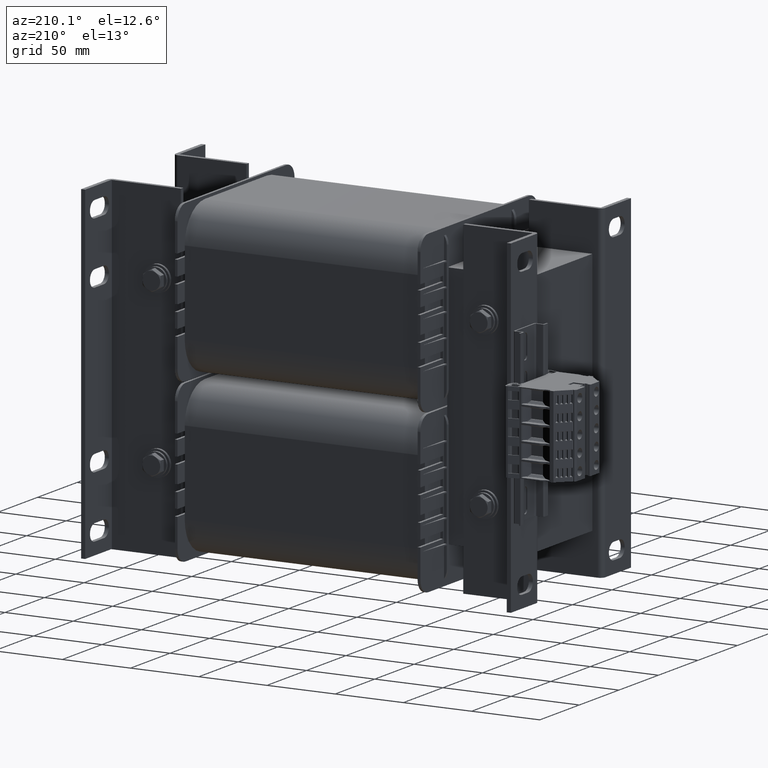
[diagram: clean part render]
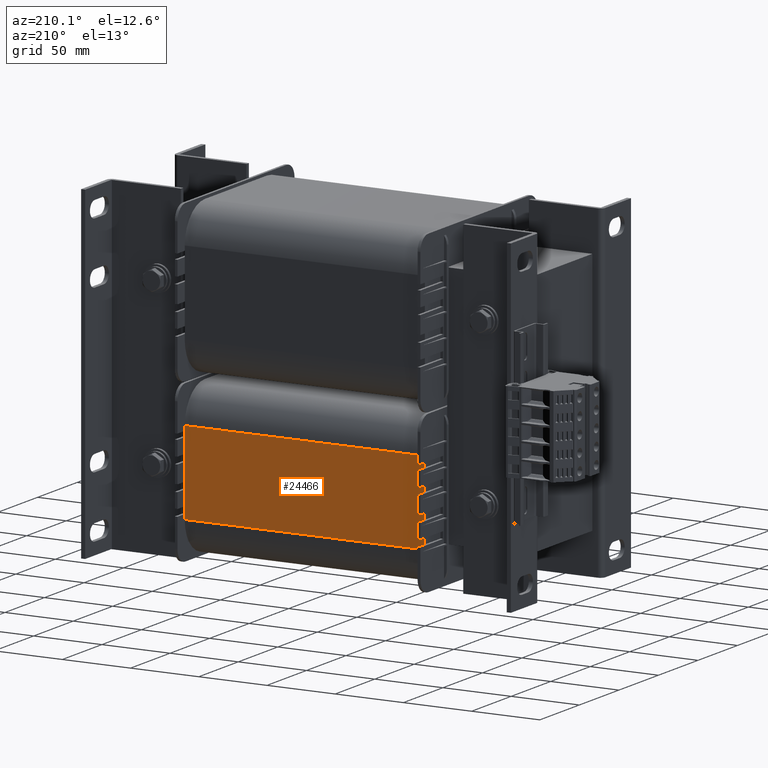
[diagram: same view with one face highlighted and labeled with its STEP entity id]
A machine part, auxiliary view. The second image highlights one B-rep face of the part: STEP entity #24466.
In plain terms, the highlighted planar face has unit normal (0, 1, 0).
Its self-contained STEP definition (entity closure, byte-faithful):
#2512=FACE_OUTER_BOUND('',#3906,.T.);
#3906=EDGE_LOOP('',(#16910,#16911,#16912,#16913,#16914,#16915,#16916,#16917,
#16918,#16919,#16920,#16921,#16922,#16923,#16924,#16925,#16926,#16927,#16928,
#16929));
#5350=LINE('',#36024,#7947);
#5352=LINE('',#36030,#7949);
#5356=LINE('',#36039,#7953);
#5360=LINE('',#36048,#7957);
#5384=LINE('',#36102,#7981);
#5388=LINE('',#36111,#7985);
#5392=LINE('',#36120,#7989);
#5396=LINE('',#36129,#7993);
#5419=LINE('',#36175,#8016);
#5420=LINE('',#36179,#8017);
#5421=LINE('',#36181,#8018);
#5422=LINE('',#36182,#8019);
#5423=LINE('',#36183,#8020);
#5424=LINE('',#36184,#8021);
#5425=LINE('',#36185,#8022);
#5426=LINE('',#36186,#8023);
#5427=LINE('',#36187,#8024);
#5428=LINE('',#36188,#8025);
#5429=LINE('',#36189,#8026);
#5430=LINE('',#36190,#8027);
#7947=VECTOR('',#28844,10.);
#7949=VECTOR('',#28848,10.);
#7953=VECTOR('',#28854,10.);
#7957=VECTOR('',#28860,10.);
#7981=VECTOR('',#28896,10.);
#7985=VECTOR('',#28902,10.);
#7989=VECTOR('',#28908,10.);
#7993=VECTOR('',#28914,10.);
#8016=VECTOR('',#28953,10.);
#8017=VECTOR('',#28958,10.);
#8018=VECTOR('',#28959,10.);
#8019=VECTOR('',#28960,10.);
#8020=VECTOR('',#28961,10.);
#8021=VECTOR('',#28962,10.);
#8022=VECTOR('',#28963,10.);
#8023=VECTOR('',#28964,10.);
#8024=VECTOR('',#28965,10.);
#8025=VECTOR('',#28966,10.);
#8026=VECTOR('',#28967,10.);
#8027=VECTOR('',#28968,10.);
#10548=VERTEX_POINT('',#36018);
#10550=VERTEX_POINT('',#36022);
#10551=VERTEX_POINT('',#36026);
#10553=VERTEX_POINT('',#36029);
#10555=VERTEX_POINT('',#36035);
#10557=VERTEX_POINT('',#36038);
#10559=VERTEX_POINT('',#36044);
#10561=VERTEX_POINT('',#36047);
#10584=VERTEX_POINT('',#36099);
#10585=VERTEX_POINT('',#36101);
#10588=VERTEX_POINT('',#36108);
#10589=VERTEX_POINT('',#36110);
#10592=VERTEX_POINT('',#36117);
#10593=VERTEX_POINT('',#36119);
#10596=VERTEX_POINT('',#36126);
#10597=VERTEX_POINT('',#36128);
#10611=VERTEX_POINT('',#36172);
#10612=VERTEX_POINT('',#36174);
#10613=VERTEX_POINT('',#36178);
#10614=VERTEX_POINT('',#36180);
#12955=EDGE_CURVE('',#10550,#10548,#5350,.T.);
#12957=EDGE_CURVE('',#10551,#10553,#5352,.T.);
#12961=EDGE_CURVE('',#10555,#10557,#5356,.T.);
#12965=EDGE_CURVE('',#10559,#10561,#5360,.T.);
#12989=EDGE_CURVE('',#10585,#10584,#5384,.T.);
#12993=EDGE_CURVE('',#10589,#10588,#5388,.T.);
#12997=EDGE_CURVE('',#10593,#10592,#5392,.T.);
#13001=EDGE_CURVE('',#10597,#10596,#5396,.T.);
#13027=EDGE_CURVE('',#10612,#10611,#5419,.T.);
#13029=EDGE_CURVE('',#10613,#10559,#5420,.T.);
#13030=EDGE_CURVE('',#10614,#10613,#5421,.T.);
#13031=EDGE_CURVE('',#10585,#10614,#5422,.T.);
#13032=EDGE_CURVE('',#10589,#10584,#5423,.T.);
#13033=EDGE_CURVE('',#10593,#10588,#5424,.T.);
#13034=EDGE_CURVE('',#10597,#10592,#5425,.T.);
#13035=EDGE_CURVE('',#10612,#10596,#5426,.T.);
#13036=EDGE_CURVE('',#10548,#10611,#5427,.T.);
#13037=EDGE_CURVE('',#10553,#10550,#5428,.T.);
#13038=EDGE_CURVE('',#10557,#10551,#5429,.T.);
#13039=EDGE_CURVE('',#10561,#10555,#5430,.T.);
#16910=ORIENTED_EDGE('',*,*,#13029,.F.);
#16911=ORIENTED_EDGE('',*,*,#13030,.F.);
#16912=ORIENTED_EDGE('',*,*,#13031,.F.);
#16913=ORIENTED_EDGE('',*,*,#12989,.T.);
#16914=ORIENTED_EDGE('',*,*,#13032,.F.);
#16915=ORIENTED_EDGE('',*,*,#12993,.T.);
#16916=ORIENTED_EDGE('',*,*,#13033,.F.);
#16917=ORIENTED_EDGE('',*,*,#12997,.T.);
#16918=ORIENTED_EDGE('',*,*,#13034,.F.);
#16919=ORIENTED_EDGE('',*,*,#13001,.T.);
#16920=ORIENTED_EDGE('',*,*,#13035,.F.);
#16921=ORIENTED_EDGE('',*,*,#13027,.T.);
#16922=ORIENTED_EDGE('',*,*,#13036,.F.);
#16923=ORIENTED_EDGE('',*,*,#12955,.F.);
#16924=ORIENTED_EDGE('',*,*,#13037,.F.);
#16925=ORIENTED_EDGE('',*,*,#12957,.F.);
#16926=ORIENTED_EDGE('',*,*,#13038,.F.);
#16927=ORIENTED_EDGE('',*,*,#12961,.F.);
#16928=ORIENTED_EDGE('',*,*,#13039,.F.);
#16929=ORIENTED_EDGE('',*,*,#12965,.F.);
#23580=PLANE('',#26218);
#24466=ADVANCED_FACE('',(#2512),#23580,.T.);
#26218=AXIS2_PLACEMENT_3D('',#36177,#28956,#28957);
#28844=DIRECTION('',(0.,0.,-1.));
#28848=DIRECTION('',(0.,0.,-1.));
#28854=DIRECTION('',(0.,0.,-1.));
#28860=DIRECTION('',(0.,0.,-1.));
#28896=DIRECTION('',(0.,0.,-1.));
#28902=DIRECTION('',(0.,0.,-1.));
#28908=DIRECTION('',(0.,0.,-1.));
#28914=DIRECTION('',(0.,0.,-1.));
#28953=DIRECTION('',(0.,1.,0.));
#28956=DIRECTION('center_axis',(1.,0.,0.));
#28957=DIRECTION('ref_axis',(0.,0.,-1.));
#28958=DIRECTION('',(0.,0.,-1.));
#28959=DIRECTION('',(0.,1.,0.));
#28960=DIRECTION('',(0.,0.,1.));
#28961=DIRECTION('',(0.,0.,1.));
#28962=DIRECTION('',(0.,0.,1.));
#28963=DIRECTION('',(0.,0.,1.));
#28964=DIRECTION('',(0.,0.,1.));
#28965=DIRECTION('',(0.,0.,-1.));
#28966=DIRECTION('',(0.,0.,-1.));
#28967=DIRECTION('',(0.,0.,-1.));
#28968=DIRECTION('',(0.,0.,-1.));
#36018=CARTESIAN_POINT('',(54.8691630029813,178.,-27.));
#36022=CARTESIAN_POINT('',(54.8691630029813,178.,-23.));
#36024=CARTESIAN_POINT('',(54.8691630029813,178.,15.25));
#36026=CARTESIAN_POINT('',(54.8691630029813,178.,-7.00000000000001));
#36029=CARTESIAN_POINT('',(54.8691630029813,178.,-12.));
#36030=CARTESIAN_POINT('',(54.8691630029813,178.,15.25));
#36035=CARTESIAN_POINT('',(54.8691630029813,178.,11.));
#36038=CARTESIAN_POINT('',(54.8691630029813,178.,5.99999999999999));
#36039=CARTESIAN_POINT('',(54.8691630029813,178.,15.25));
#36044=CARTESIAN_POINT('',(54.8691630029813,178.,27.));
#36047=CARTESIAN_POINT('',(54.8691630029813,178.,22.));
#36048=CARTESIAN_POINT('',(54.8691630029813,178.,15.25));
#36099=CARTESIAN_POINT('',(54.8691630029813,2.,22.));
#36101=CARTESIAN_POINT('',(54.8691630029813,2.,27.));
#36102=CARTESIAN_POINT('',(54.8691630029813,2.,30.5));
#36108=CARTESIAN_POINT('',(54.8691630029813,2.,5.99999999999999));
#36110=CARTESIAN_POINT('',(54.8691630029813,2.,11.));
#36111=CARTESIAN_POINT('',(54.8691630029813,2.,30.5));
#36117=CARTESIAN_POINT('',(54.8691630029813,2.,-12.));
#36119=CARTESIAN_POINT('',(54.8691630029813,2.,-7.00000000000001));
#36120=CARTESIAN_POINT('',(54.8691630029813,2.,30.5));
#36126=CARTESIAN_POINT('',(54.8691630029813,2.,-27.));
#36128=CARTESIAN_POINT('',(54.8691630029813,2.,-23.));
#36129=CARTESIAN_POINT('',(54.8691630029813,2.,30.5));
#36172=CARTESIAN_POINT('',(54.8691630029813,178.,-30.5));
#36174=CARTESIAN_POINT('',(54.8691630029813,2.,-30.5));
#36175=CARTESIAN_POINT('',(54.8691630029813,2.,-30.5));
#36177=CARTESIAN_POINT('Origin',(54.8691630029813,2.,30.5));
#36178=CARTESIAN_POINT('',(54.8691630029813,178.,30.5));
#36179=CARTESIAN_POINT('',(54.8691630029813,178.,15.25));
#36180=CARTESIAN_POINT('',(54.8691630029813,2.,30.5));
#36181=CARTESIAN_POINT('',(54.8691630029813,2.,30.5));
#36182=CARTESIAN_POINT('',(54.8691630029813,2.,15.25));
#36183=CARTESIAN_POINT('',(54.8691630029813,2.,15.25));
#36184=CARTESIAN_POINT('',(54.8691630029813,2.,15.25));
#36185=CARTESIAN_POINT('',(54.8691630029813,2.,15.25));
#36186=CARTESIAN_POINT('',(54.8691630029813,2.,15.25));
#36187=CARTESIAN_POINT('',(54.8691630029813,178.,15.25));
#36188=CARTESIAN_POINT('',(54.8691630029813,178.,15.25));
#36189=CARTESIAN_POINT('',(54.8691630029813,178.,15.25));
#36190=CARTESIAN_POINT('',(54.8691630029813,178.,15.25));